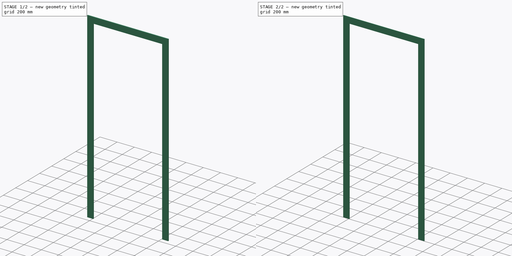
[diagram: build sequence overview — one tinted view per stage of 2, left to right]
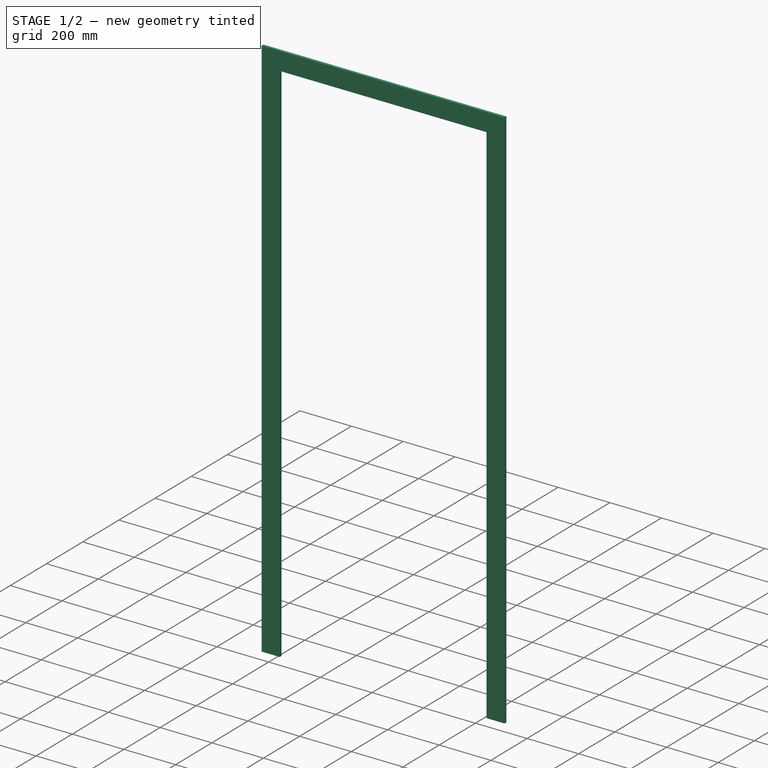
[diagram: stage 1 of 2 — iso view after this stage's code; geometry added in this stage tinted green]
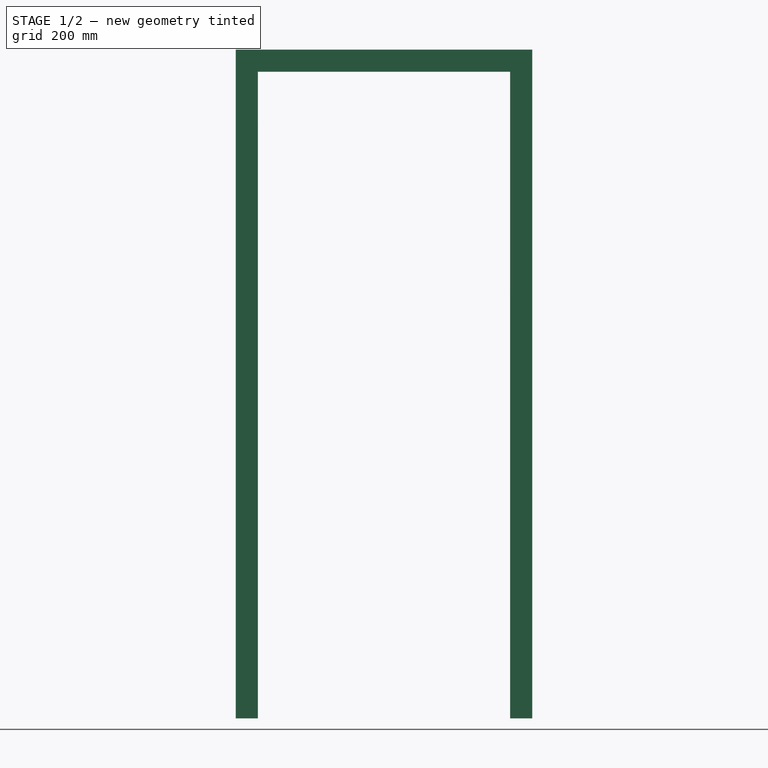
[diagram: stage 1 of 2 — front view after this stage's code; geometry added in this stage tinted green]
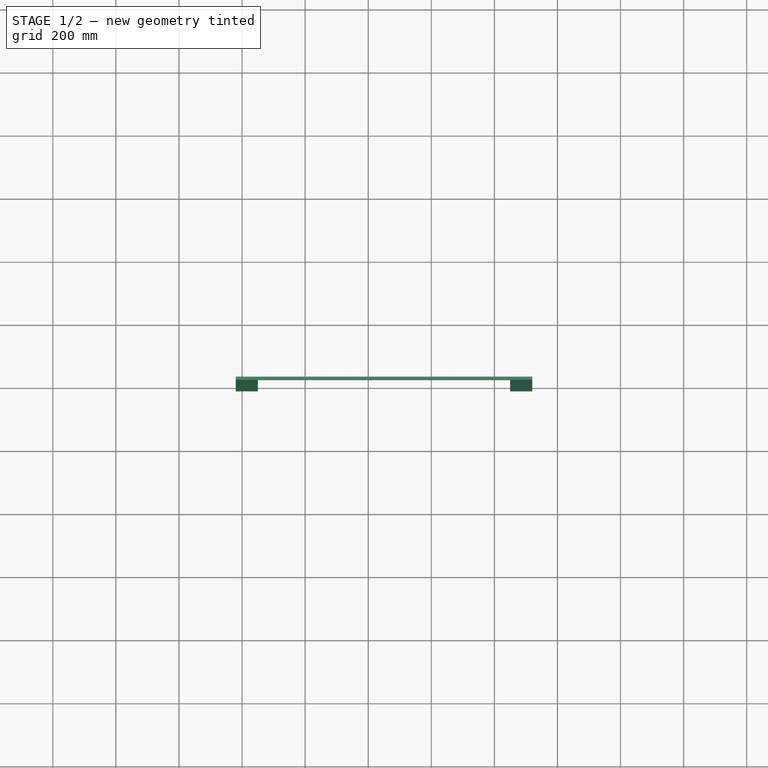
[diagram: stage 1 of 2 — top view after this stage's code; geometry added in this stage tinted green]
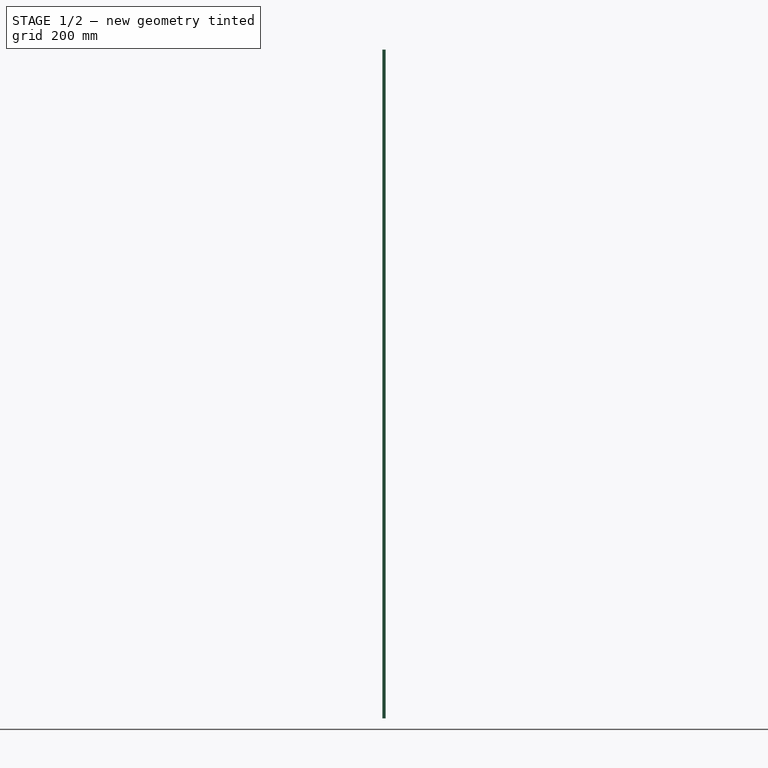
[diagram: stage 1 of 2 — right view after this stage's code; geometry added in this stage tinted green]
FCSTD DOCUMENT  (FreeCAD 0.16R6704 (Git))
Label: Single door with window and trims
License: CreativeCommons Attribution
LicenseURL: http://creativecommons.org/licenses/by/4.0/
objects: Sketcher::SketchObject×2, Part::FeaturePython×1, Part::Extrusion×1, PartDesign::Fillet×1, Part::Mirroring×1, App::DocumentObjectGroup×1
note: 6 computed .brp shape members not serialized (recipe doc carries the construction recipe); baked Part::Feature solids carry a one-line shape summary decoded from their .brp

FEATURE [Sketcher::SketchObject] Sketch117
  Placement = pos=(0,0,0) rot=(1,0,0;1.5708rad)
  sketch-geometry (12):
    g0: LineSegment StartX=0 StartY=0 StartZ=0 EndX=900 EndY=0 EndZ=0
    g1: LineSegment StartX=900 StartY=0 StartZ=0 EndX=900 EndY=2100 EndZ=0
    g2: LineSegment StartX=900 StartY=2100 StartZ=0 EndX=0 EndY=2100 EndZ=0
    g3: LineSegment StartX=0 StartY=2100 StartZ=0 EndX=0 EndY=0 EndZ=0
    g4: LineSegment StartX=50 StartY=0 StartZ=0 EndX=850 EndY=0 EndZ=0
    g5: LineSegment StartX=850 StartY=0 StartZ=0 EndX=850 EndY=2050 EndZ=0
    g6: LineSegment StartX=850 StartY=2050 StartZ=0 EndX=50 EndY=2050 EndZ=0
    g7: LineSegment StartX=50 StartY=2050 StartZ=0 EndX=50 EndY=0 EndZ=0
    g8: LineSegment StartX=500 StartY=1950 StartZ=0 EndX=700 EndY=1950 EndZ=0
    g9: LineSegment StartX=700 StartY=1950 StartZ=0 EndX=700 EndY=1100 EndZ=0
    g10: LineSegment StartX=700 StartY=1100 StartZ=0 EndX=500 EndY=1100 EndZ=0
    g11: LineSegment StartX=500 StartY=1100 StartZ=0 EndX=500 EndY=1950 EndZ=0
  constraints (35):
    c: Coincident(g0,g1)
    c: Coincident(g1,g2)
    c: Coincident(g2,g3)
    c: Coincident(g3,g0)
    c: Horizontal(g0)
    c: Horizontal(g2)
    c: Vertical(g1)
    c: Vertical(g3)
    c: Coincident(g4,g5)
    c: Coincident(g5,g6)
    c: Coincident(g6,g7)
    c: Coincident(g7,g4)
    c: Horizontal(g4)
    c: Horizontal(g6)
    c: Vertical(g5)
    c: Vertical(g7)
    c: DistanceY(g1) = 2100  'Altura do vão'
    c: DistanceX(g0) = 900  'Largura do vão'
    c: DistanceY(g6,g2) = 50  'Altura do batente'
    c: DistanceX(g2,g6) = 50  'Largura do batente 1'
    c: DistanceX(g4,g0) = 50  'Largura do batente'
    c: DistanceY(g0,g4) = 0
    c: Coincident(g0,g-1)
    c: Coincident(g8,g9)
    c: Coincident(g9,g10)
    c: Coincident(g10,g11)
    c: Coincident(g11,g8)
    c: Horizontal(g8)
    c: Horizontal(g10)
    c: Vertical(g9)
    c: Vertical(g11)
    c: DistanceX(g8,g8) = 200  'Largura janela'
    c: DistanceY(g9,g8) = 850  'Altura janela'
    c: DistanceX(g8,g5) = 150  'Distância da janela na porta'
    c: DistanceY(g-1,g9) = 1100  'Janela - altura do chão'
FEATURE [Part::FeaturePython] Window085  label="Single door with window"  # WARN: FeaturePython — macro-defined, semantics opaque (R4)
  Base = -> Sketch117
  Height = 2100
  HoleDepth = 0
  MoveWithHost = true
  Normal = (0,1,0)
  Preset = 6
  Role = 1
  Width = 900
  WindowParts = BATENTE | Frame | Wire0,Wire1 | 140.0 | 0.0 | PORTA | Solid panel | Wire1,Wire2 | 40.0 | 100.0 | VIDRO  | Glass panel | Wire2 | 4.0 | 118.0
FEATURE [Sketcher::SketchObject] Sketch193  label="Esboço guarnições 006"
  ExternalGeometry = -> [Window085]
  Placement = pos=(0,0,0) rot=(1,0,0;1.5708rad)
  Support = -> Window085 [Face2]
  sketch-geometry (8):
    g0: LineSegment StartX=50 StartY=0 StartZ=0 EndX=-20 EndY=0 EndZ=0
    g1: LineSegment StartX=-20 StartY=0 StartZ=0 EndX=-20 EndY=2120 EndZ=0
    g2: LineSegment StartX=-20 StartY=2120 StartZ=0 EndX=920 EndY=2120 EndZ=0
    g3: LineSegment StartX=920 StartY=2120 StartZ=0 EndX=920 EndY=0 EndZ=0
    g4: LineSegment StartX=920 StartY=0 StartZ=0 EndX=850 EndY=0 EndZ=0
    g5: LineSegment StartX=850 StartY=0 StartZ=0 EndX=850 EndY=2050 EndZ=0
    g6: LineSegment StartX=850 StartY=2050 StartZ=0 EndX=50 EndY=2050 EndZ=0
    g7: LineSegment StartX=50 StartY=2050 StartZ=0 EndX=50 EndY=0 EndZ=0
  constraints (21):
    c: Coincident(g-4,g0)
    c: Horizontal(g0)
    c: Coincident(g0,g1)
    c: Vertical(g1)
    c: Coincident(g1,g2)
    c: Horizontal(g2)
    c: Coincident(g2,g3)
    c: Vertical(g3)
    c: Coincident(g3,g4)
    c: Coincident(g4,g-5)
    c: Horizontal(g4)
    c: Coincident(g4,g5)
    c: Coincident(g5,g-5)
    c: Coincident(g5,g6)
    c: Horizontal(g6)
    c: Coincident(g6,g7)
    c: Coincident(g7,g0)
    c: Vertical(g7)
    c: DistanceX(g1,g6) = 70  'Largura guarnição 1'
    c: DistanceY(g5,g2) = 70  'Altura guarnição'
    c: DistanceX(g4,g3) = 70  'Largura guarnição 2'
FEATURE [Part::Extrusion] Extrude_Sketch193  label="Trim"
  Base = -> Sketch193
  Dir = (0,-10,0)
  Solid = true
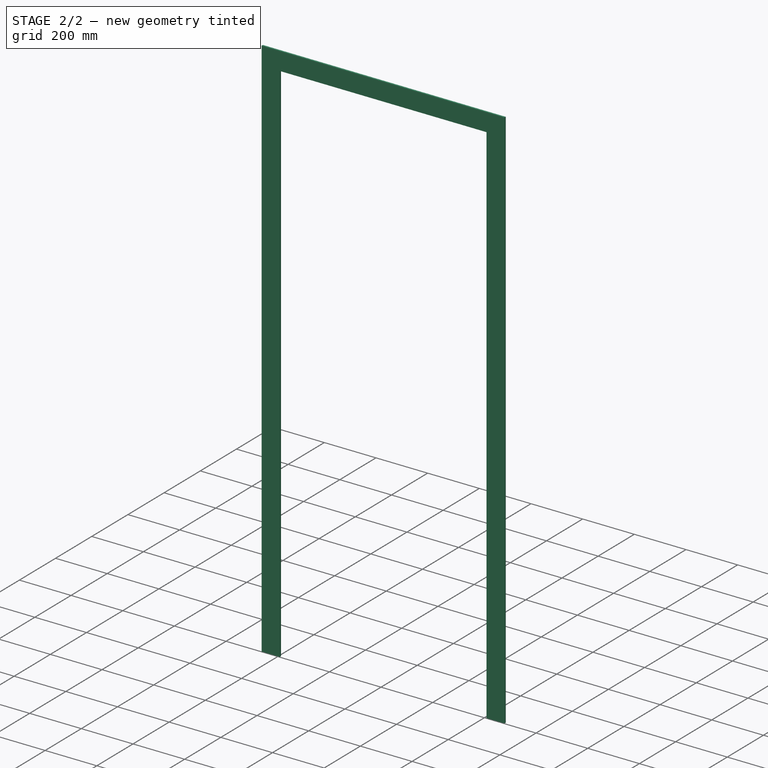
[diagram: stage 2 of 2 — iso view after this stage's code; geometry added in this stage tinted green]
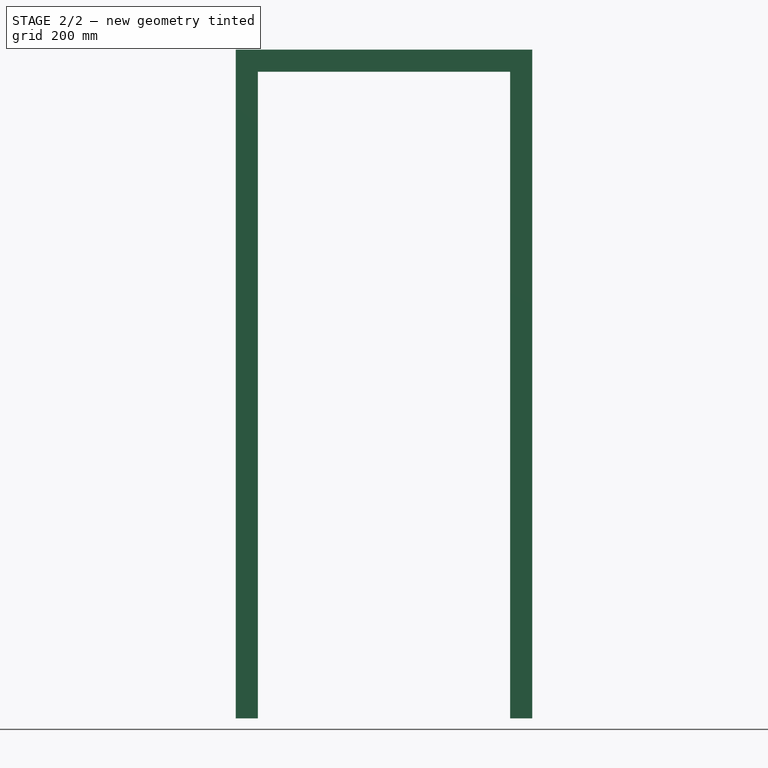
[diagram: stage 2 of 2 — front view after this stage's code; geometry added in this stage tinted green]
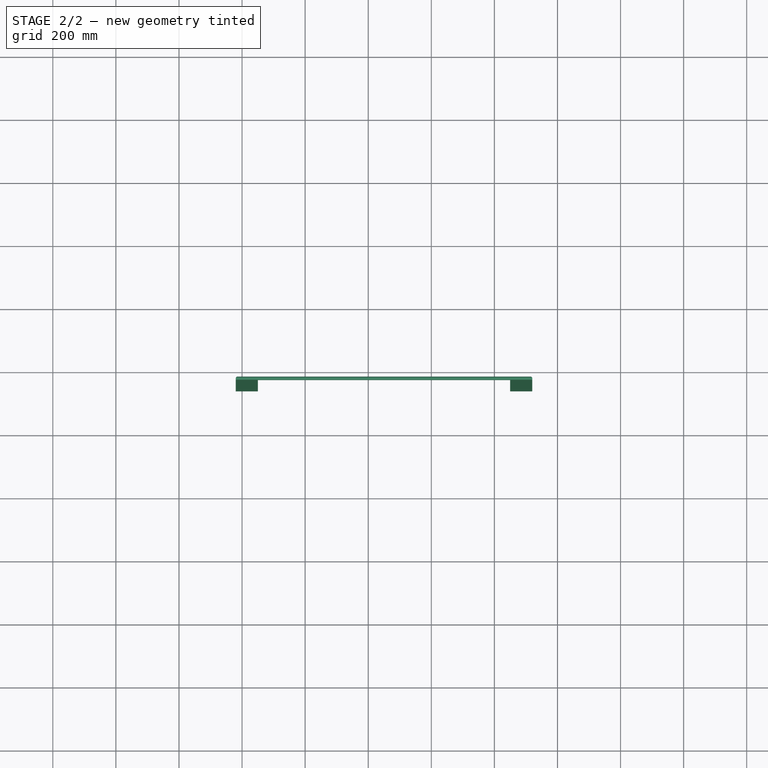
[diagram: stage 2 of 2 — top view after this stage's code; geometry added in this stage tinted green]
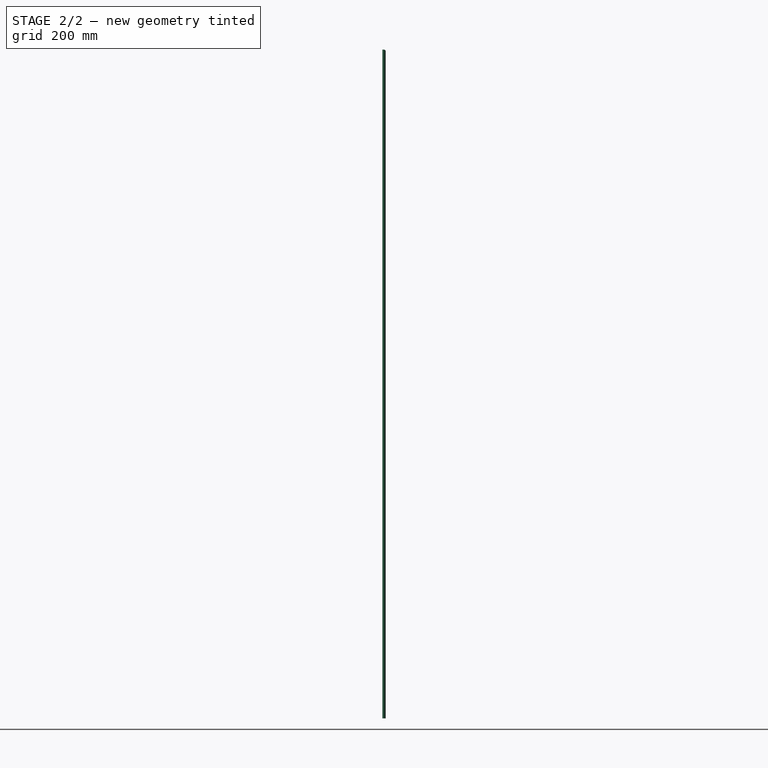
[diagram: stage 2 of 2 — right view after this stage's code; geometry added in this stage tinted green]
FEATURE [PartDesign::Fillet] Fillet001  label="Final trim 001"
  Base = -> Extrude_Sketch193 [Edge19,Edge13,Edge10,Edge22,Edge24,Edge7]
  Radius = 5
FEATURE [Part::Mirroring] Part__Mirroring001  label="Final trim (Mirror #2)"
  Base = (0,0,0)
  Normal = (0,1,0)
  Placement = pos=(0,140,0) rot=(0,0,1;0rad)
  Source = -> Fillet001
FEATURE [App::DocumentObjectGroup] Grupo115  label="Single door with window and trims"
  Group = -> [Window085,Extrude_Sketch193,Part__Mirroring001]
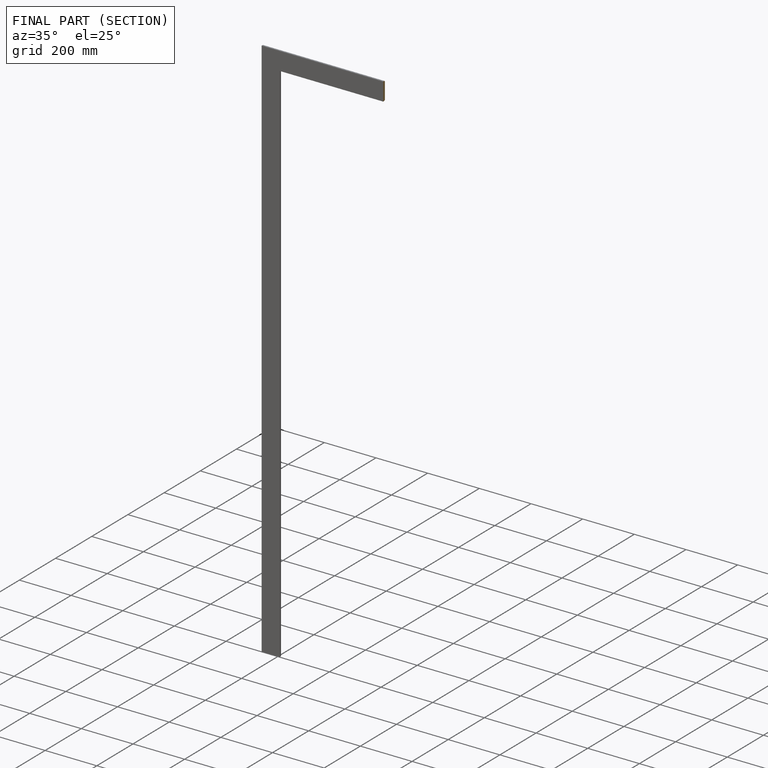
[diagram: finished part — half-section view (interior)]
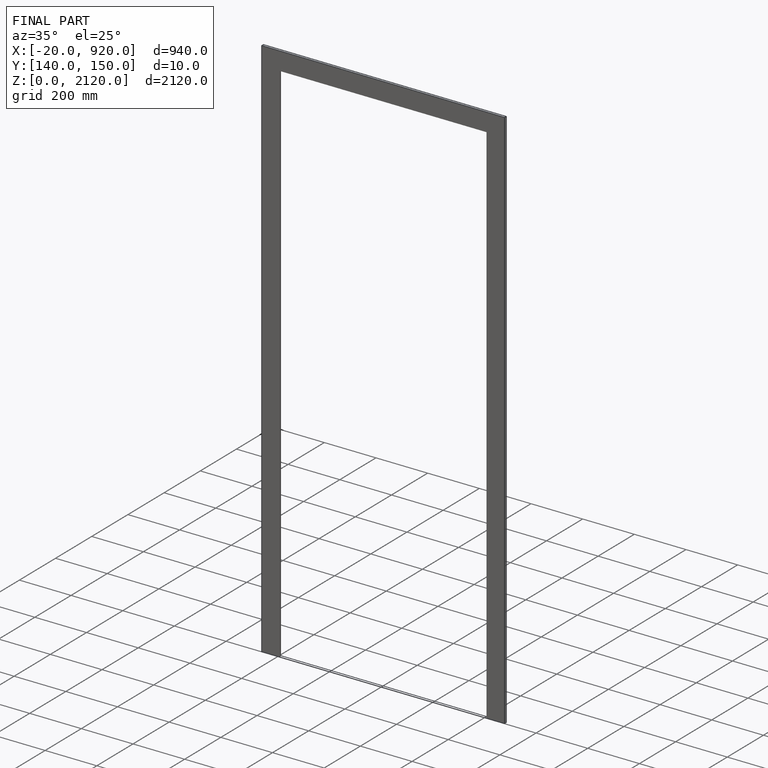
[diagram: finished part — iso view with bounding-box wireframe]
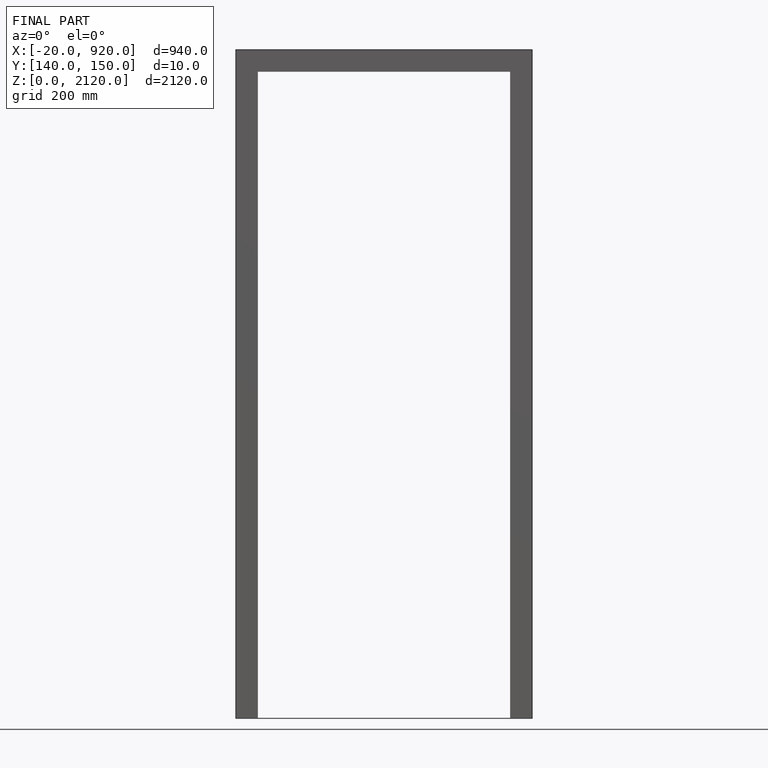
[diagram: finished part — front view with bounding-box wireframe]
